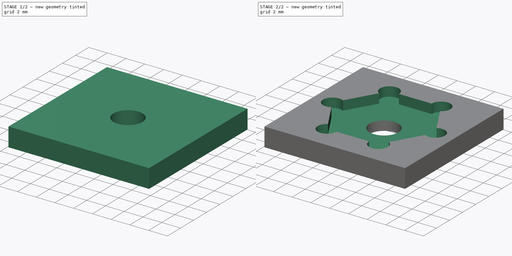
[diagram: build sequence overview — one tinted view per stage of 2, left to right]
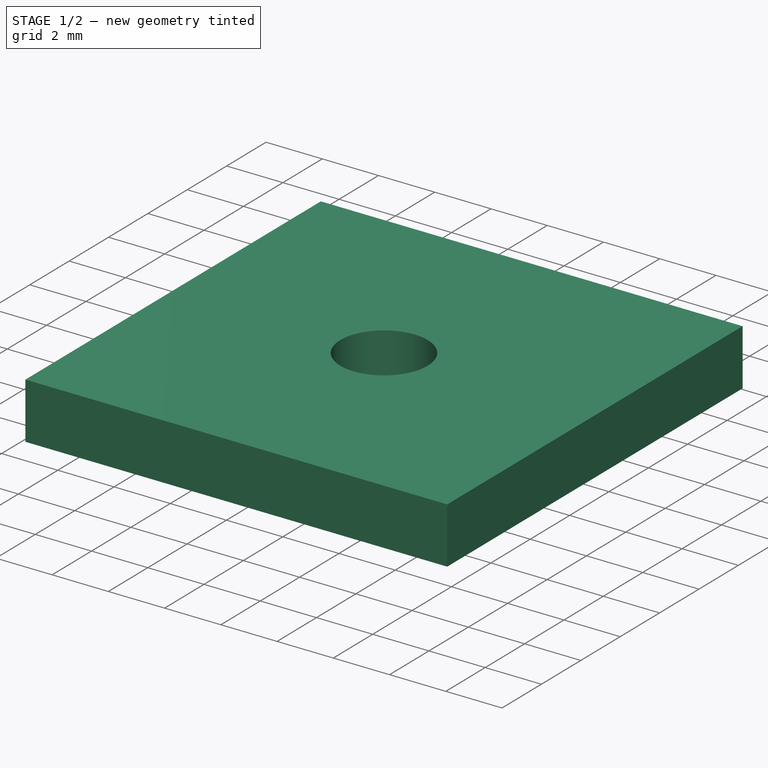
[diagram: stage 1 of 2 — iso view after this stage's code; geometry added in this stage tinted green]
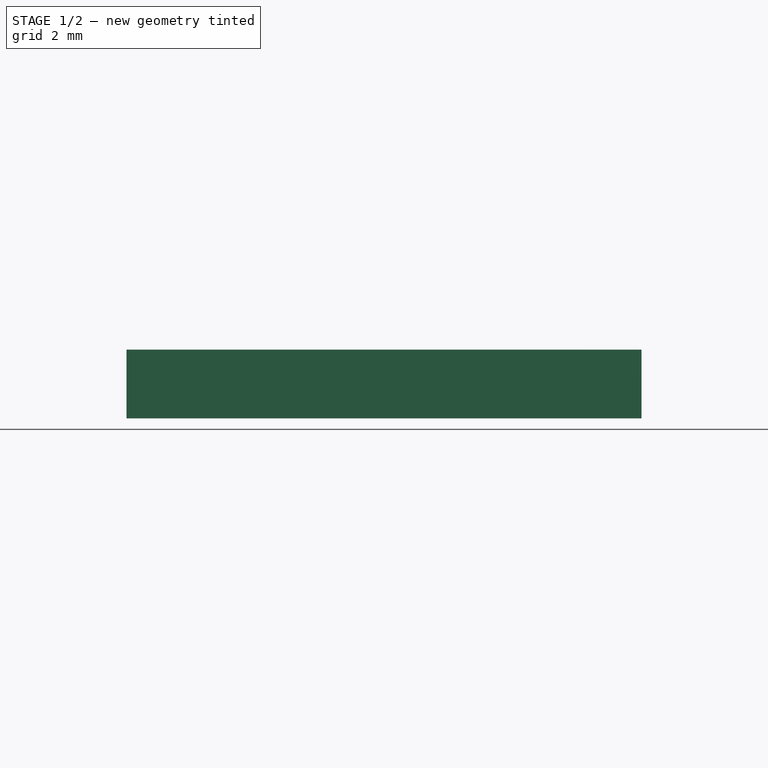
[diagram: stage 1 of 2 — front view after this stage's code; geometry added in this stage tinted green]
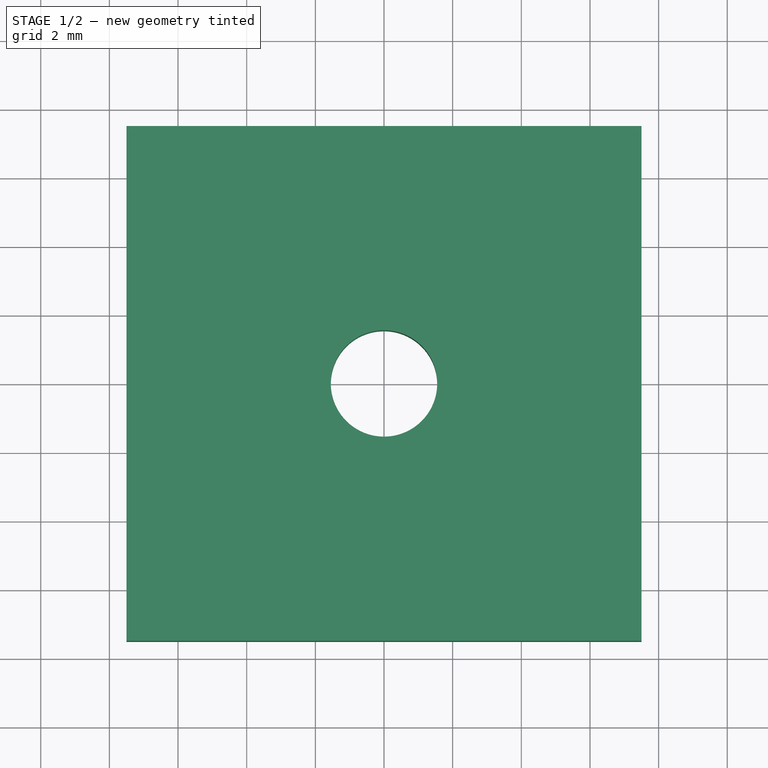
[diagram: stage 1 of 2 — top view after this stage's code; geometry added in this stage tinted green]
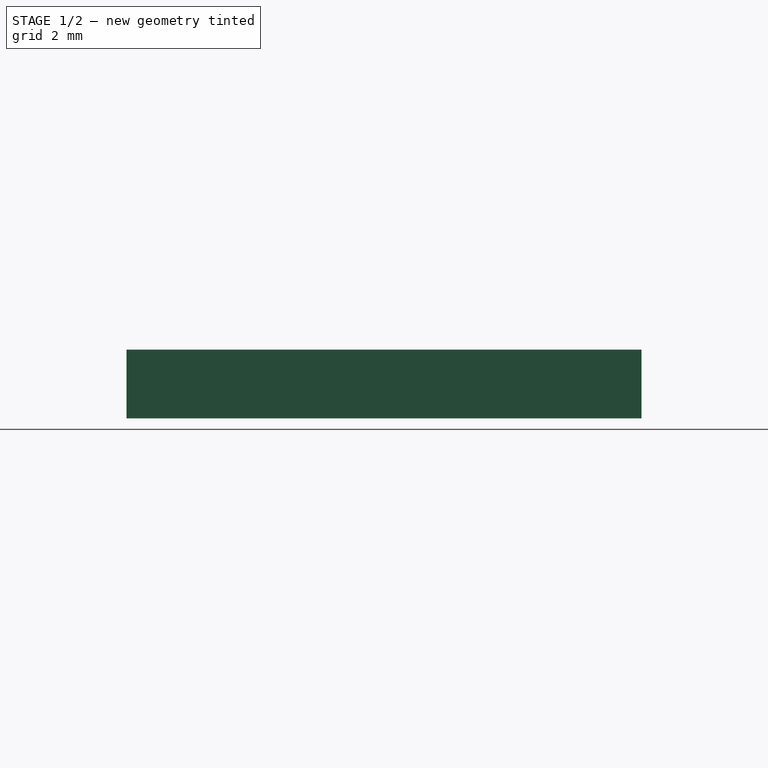
[diagram: stage 1 of 2 — right view after this stage's code; geometry added in this stage tinted green]
FCSTD DOCUMENT  (FreeCAD 0.21R33694 (Git))
Label: drillingHolder-fc21-2
License: All rights reserved
LicenseURL: http://en.wikipedia.org/wiki/All_rights_reserved
objects: Sketcher::SketchObject×2, PartDesign::Pad×1, PartDesign::Plane×1, PartDesign::Pocket×1, PartDesign::Body×1
note: 8 computed .brp shape members not serialized (recipe doc carries the construction recipe); baked Part::Feature solids carry a one-line shape summary decoded from their .brp

FEATURE [Sketcher::SketchObject] Sketch
  FullyConstrained = true
  MapMode = 5
  Support = -> [XY_Plane]
  sketch-geometry (5):
    g0: LineSegment StartX=-7.5 StartY=7.5 StartZ=0 EndX=7.5 EndY=7.5 EndZ=0
    g1: LineSegment StartX=7.5 StartY=7.5 StartZ=0 EndX=7.5 EndY=-7.5 EndZ=0
    g2: LineSegment StartX=7.5 StartY=-7.5 StartZ=0 EndX=-7.5 EndY=-7.5 EndZ=0
    g3: LineSegment StartX=-7.5 StartY=-7.5 StartZ=0 EndX=-7.5 EndY=7.5 EndZ=0
    g4: Circle CenterX=0 CenterY=0 CenterZ=0 NormalX=0 NormalY=0 NormalZ=1 AngleXU=0 Radius=1.55
  constraints (12):
    c: Coincident(g0,g1)
    c: Coincident(g1,g2)
    c: Coincident(g2,g3)
    c: Coincident(g3,g0)
    c: Horizontal(g0)
    c: Vertical(g1)
    c: Symmetric(g2,g0,g-1)
    c: Symmetric(g1,g2,g-2)
    c: Equal(g3,g2)
    c: DistanceY(g1,g1) = 15
    c: Coincident(g4,g-1)
    c: Diameter(g4) = 3.1
FEATURE [PartDesign::Pad] Pad
  Direction = (0,0,1)
  Length = 2
  Length2 = 10
  Profile = -> Sketch
  ReferenceAxis = -> Sketch [N_Axis]
  Type = 0
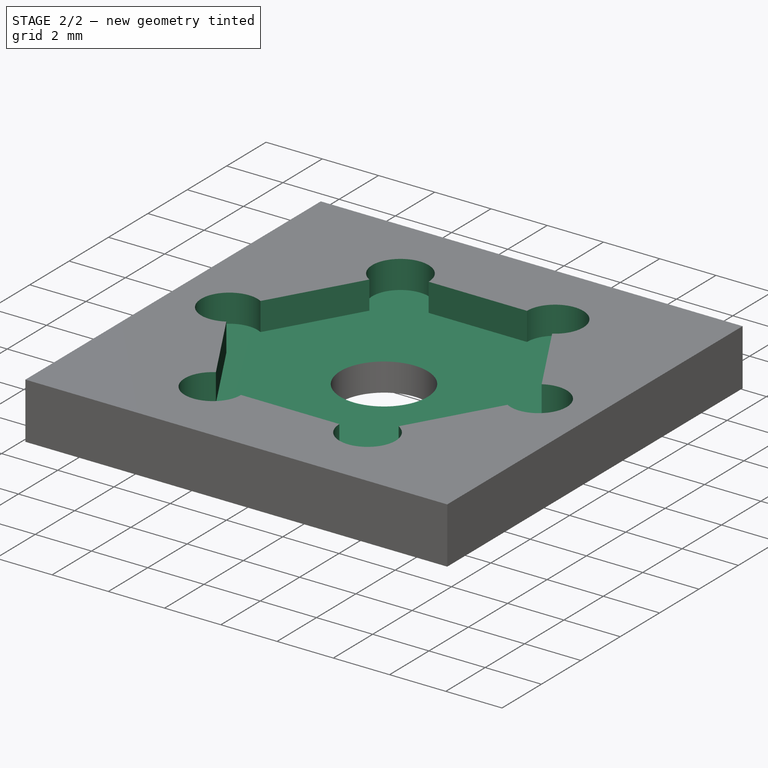
[diagram: stage 2 of 2 — iso view after this stage's code; geometry added in this stage tinted green]
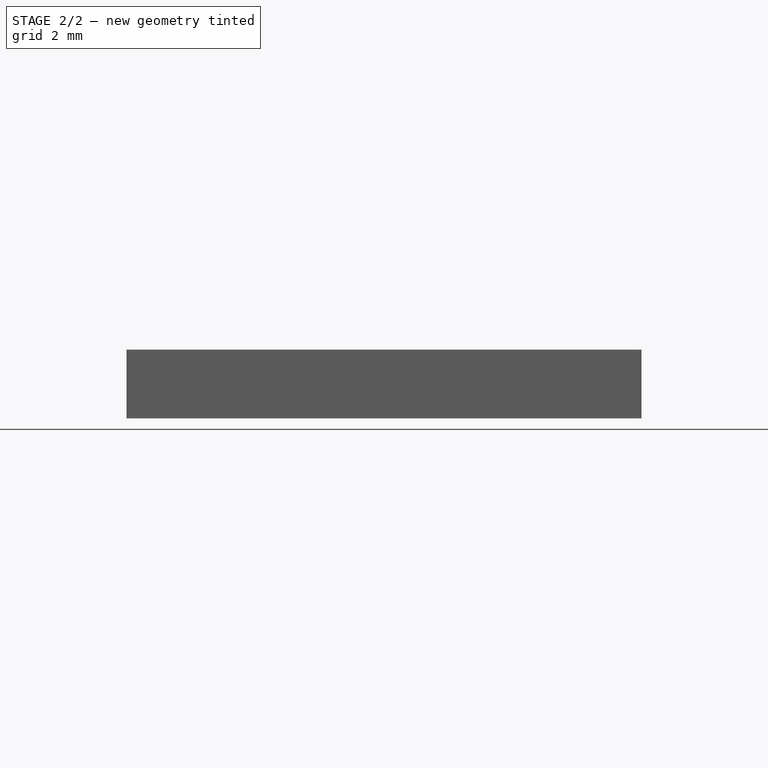
[diagram: stage 2 of 2 — front view after this stage's code; geometry added in this stage tinted green]
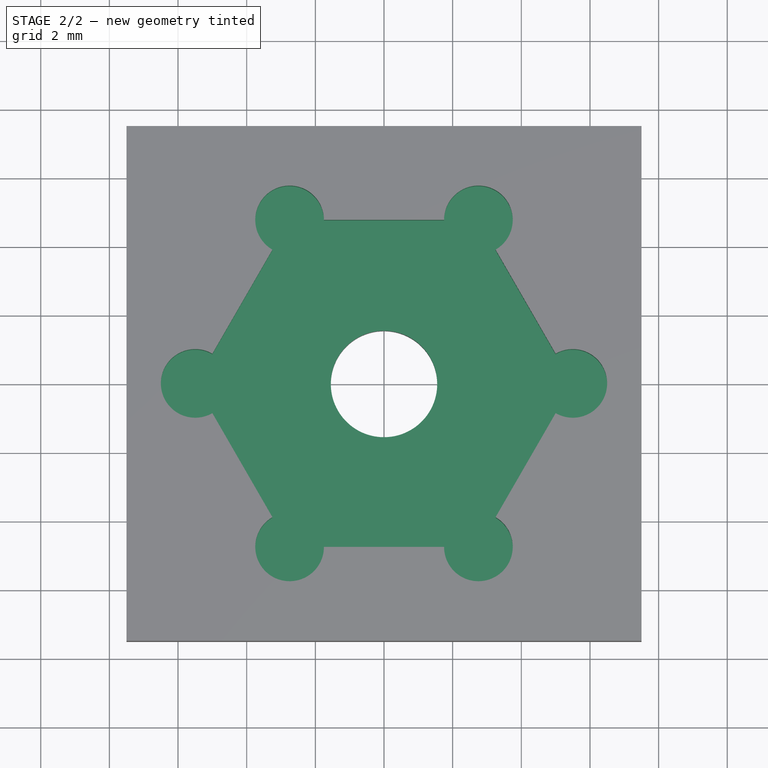
[diagram: stage 2 of 2 — top view after this stage's code; geometry added in this stage tinted green]
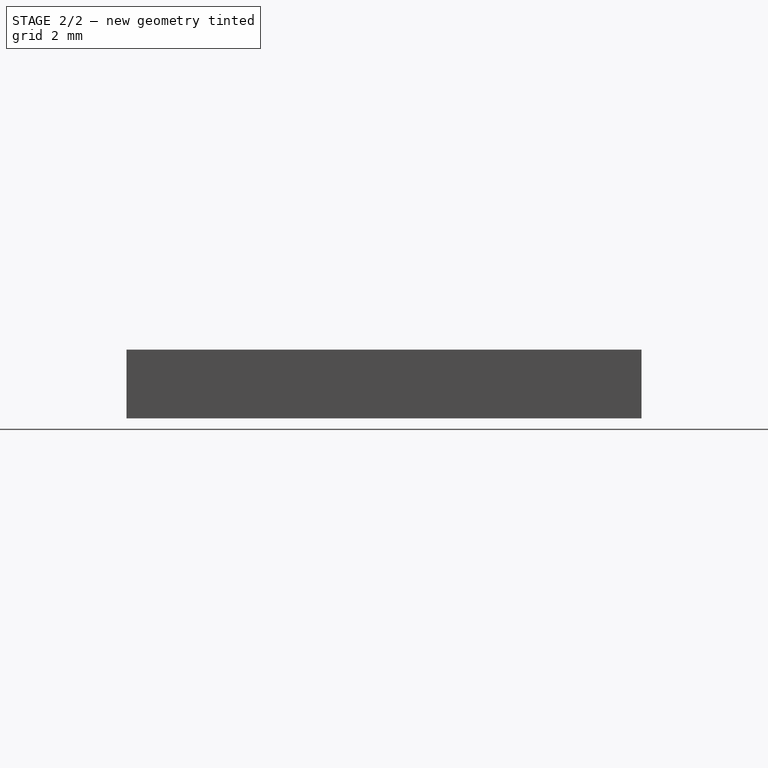
[diagram: stage 2 of 2 — right view after this stage's code; geometry added in this stage tinted green]
FEATURE [PartDesign::Plane] DatumPlane
  Length = 60
  MapMode = 5
  Placement = pos=(0,0,2) rot=(0,0,1;0rad)
  ResizeMode = 0
  Support = -> [Pad]
  Width = 60
FEATURE [Sketcher::SketchObject] Sketch001
  FullyConstrained = true
  MapMode = 5
  Placement = pos=(0,0,2) rot=(0,0,1;0rad)
  Support = -> [DatumPlane]
  sketch-geometry (19):
    g0: LineSegment StartX=2.75 StartY=-4.76314 StartZ=0 EndX=5.5 EndY=0 EndZ=0
    g1: LineSegment StartX=5.5 StartY=3e-16 StartZ=0 EndX=2.75 EndY=4.76314 EndZ=0
    g2: LineSegment StartX=2.75 StartY=4.76314 StartZ=0 EndX=-2.75 EndY=4.76314 EndZ=0
    g3: LineSegment StartX=-2.75 StartY=4.76314 StartZ=0 EndX=-5.5 EndY=-9e-16 EndZ=0
    g4: LineSegment StartX=-5.5 StartY=-9e-16 StartZ=0 EndX=-2.75 EndY=-4.76314 EndZ=0
    g5: LineSegment StartX=-2.75 StartY=-4.76314 StartZ=0 EndX=2.75 EndY=-4.76314 EndZ=0
    g6: Circle CenterX=0 CenterY=0 CenterZ=0 NormalX=0 NormalY=0 NormalZ=1 AngleXU=0 Radius=5.5
    g7: ArcOfCircle CenterX=-2.75 CenterY=4.76314 CenterZ=0 NormalX=0 NormalY=0 NormalZ=1 AngleXU=0 Radius=1 StartAngle=7e-16 EndAngle=4.18879
    g8: ArcOfCircle CenterX=2.75 CenterY=4.76314 CenterZ=0 NormalX=0 NormalY=0 NormalZ=1 AngleXU=0 Radius=1 StartAngle=5.23599 EndAngle=9.42478
    g9: ArcOfCircle CenterX=2.75 CenterY=-4.76314 CenterZ=0 NormalX=0 NormalY=0 NormalZ=1 AngleXU=0 Radius=1 StartAngle=3.14159 EndAngle=7.33038
    g10: ArcOfCircle CenterX=-2.75 CenterY=-4.76314 CenterZ=0 NormalX=0 NormalY=0 NormalZ=1 AngleXU=0 Radius=1 StartAngle=2.0944 EndAngle=6.28319
    g11: ArcOfCircle CenterX=-5.5 CenterY=-9e-16 CenterZ=0 NormalX=0 NormalY=0 NormalZ=1 AngleXU=0 Radius=1 StartAngle=1.0472 EndAngle=5.23599
    g12: LineSegment StartX=-3.25 StartY=3.89711 StartZ=0 EndX=-5 EndY=0.866025 EndZ=0
    g13: LineSegment StartX=-5 StartY=-0.866025 StartZ=0 EndX=-3.25 EndY=-3.89711 EndZ=0
    g14: LineSegment StartX=-1.75 StartY=-4.76314 StartZ=0 EndX=1.75 EndY=-4.76314 EndZ=0
    g15: ArcOfCircle CenterX=5.5 CenterY=3e-16 CenterZ=0 NormalX=0 NormalY=0 NormalZ=1 AngleXU=0 Radius=1 StartAngle=4.18879 EndAngle=8.37758
    g16: LineSegment StartX=-1.75 StartY=4.76314 StartZ=0 EndX=1.75 EndY=4.76314 EndZ=0
    g17: LineSegment StartX=3.25 StartY=3.89711 StartZ=0 EndX=5 EndY=0.866025 EndZ=0
    g18: LineSegment StartX=5 StartY=-0.866025 StartZ=0 EndX=3.25 EndY=-3.89711 EndZ=0
  constraints (52):
    c: Coincident(g0,g1)
    c: Coincident(g1,g2)
    c: Coincident(g2,g3)
    c: Coincident(g3,g4)
    c: Coincident(g4,g5)
    c: Coincident(g5,g0)
    c: Equal(g0, g1-g5) x5
    c: PointOnObject(g0,g6)
    c: PointOnObject(g1,g6)
    c: PointOnObject(g2,g6)
    c: PointOnObject(g3,g6)
    c: PointOnObject(g4,g6)
    c: PointOnObject(g5,g6)
    c: Coincident(g6,g-1)
    c: DistanceX(g3,g0) = 11
    c: Horizontal(g5)
    c: Coincident(g11,g3)
    c: Coincident(g8,g1)
    c: Coincident(g9,g0)
    c: Coincident(g10,g4)
    c: PointOnObject(g7,g3)
    c: PointOnObject(g7,g2)
    c: Coincident(g7,g2)
    c: PointOnObject(g8,g2)
    c: PointOnObject(g11,g4)
    c: PointOnObject(g11,g3)
    c: PointOnObject(g10,g5)
    c: PointOnObject(g10,g4)
    c: PointOnObject(g9,g5)
    c: PointOnObject(g9,g0)
    c: Radius(g7) = 1
    c: Equal(g11,g7)
    c: Equal(g7,g10)
    c: Equal(g7,g9)
    c: Coincident(g12,g7)
    c: Coincident(g12,g11)
    c: Coincident(g13,g11)
    c: Coincident(g13,g10)
    c: Coincident(g14,g10)
    c: Coincident(g14,g9)
    c: PointOnObject(g8,g1)
    c: Equal(g7,g8)
    c: PointOnObject(g15,g1)
    c: PointOnObject(g15,g0)
    c: Equal(g15,g7)
    c: Coincident(g15,g0)
    c: Coincident(g16,g7)
    c: Coincident(g16,g8)
    c: Coincident(g17,g8)
    c: Coincident(g17,g15)
    c: Coincident(g18,g15)
    c: Coincident(g18,g9)
FEATURE [PartDesign::Pocket] Pocket
  BaseFeature = -> Pad
  Direction = (0,0,-1)
  Length = 1
  Length2 = 5
  Profile = -> Sketch001
  ReferenceAxis = -> Sketch001 [N_Axis]
  Type = 0
FEATURE [PartDesign::Body] Body
  Group = -> [Sketch,Pad,DatumPlane,Sketch001,Pocket]
  Origin = -> Origin
  Tip = -> Pocket
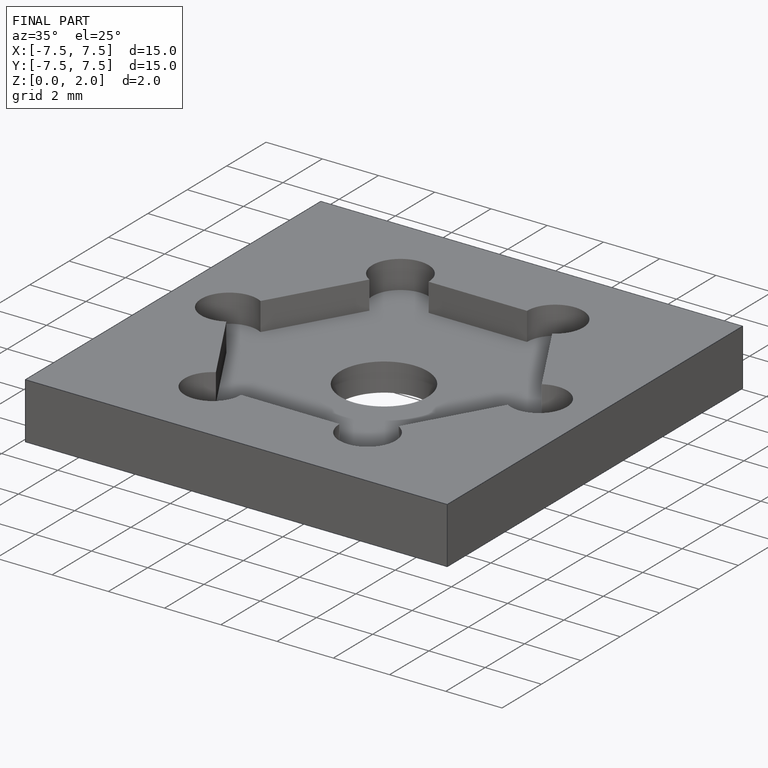
[diagram: finished part — iso view with bounding-box wireframe]
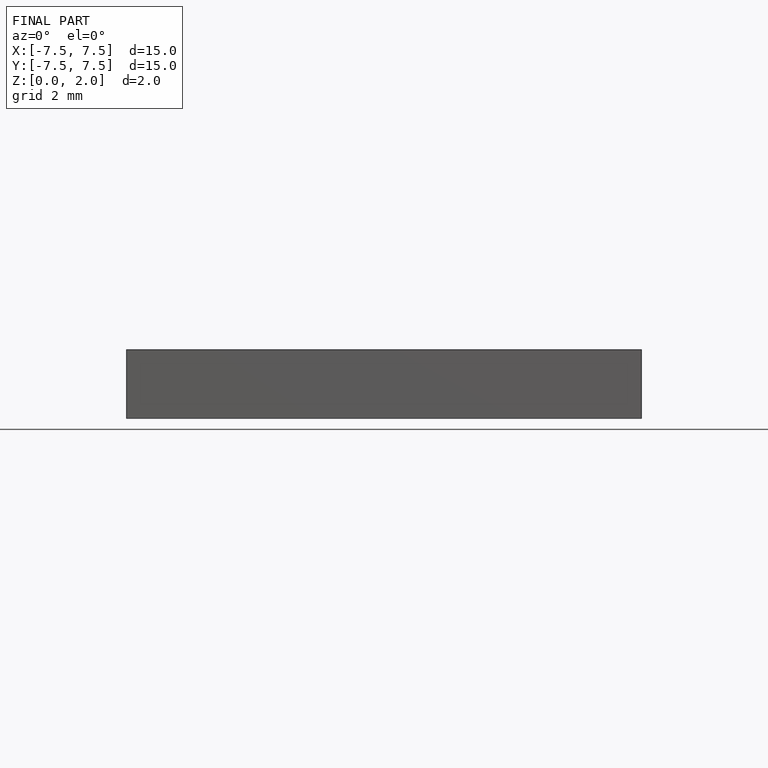
[diagram: finished part — front view with bounding-box wireframe]
